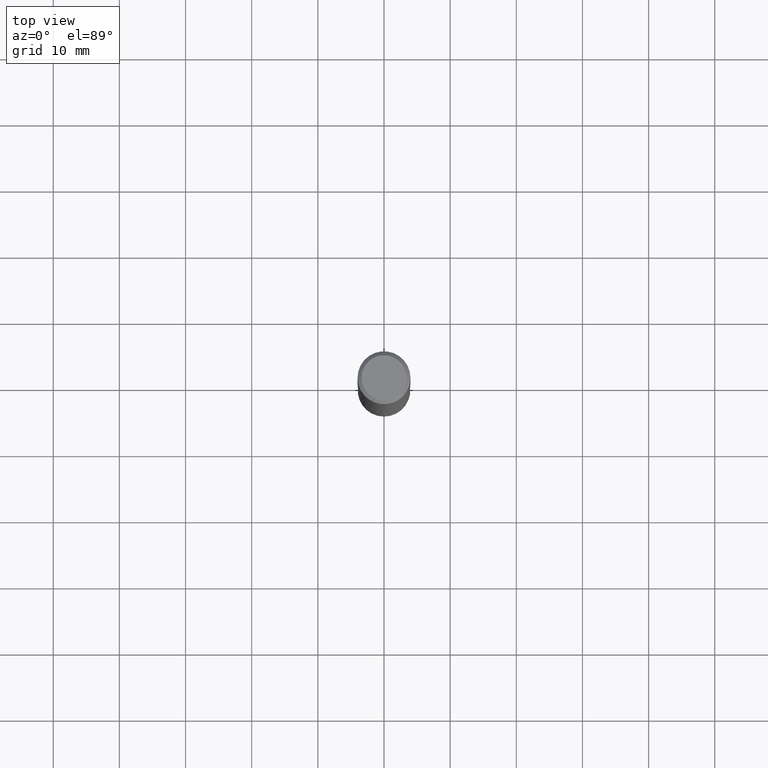
[diagram: clean part render]
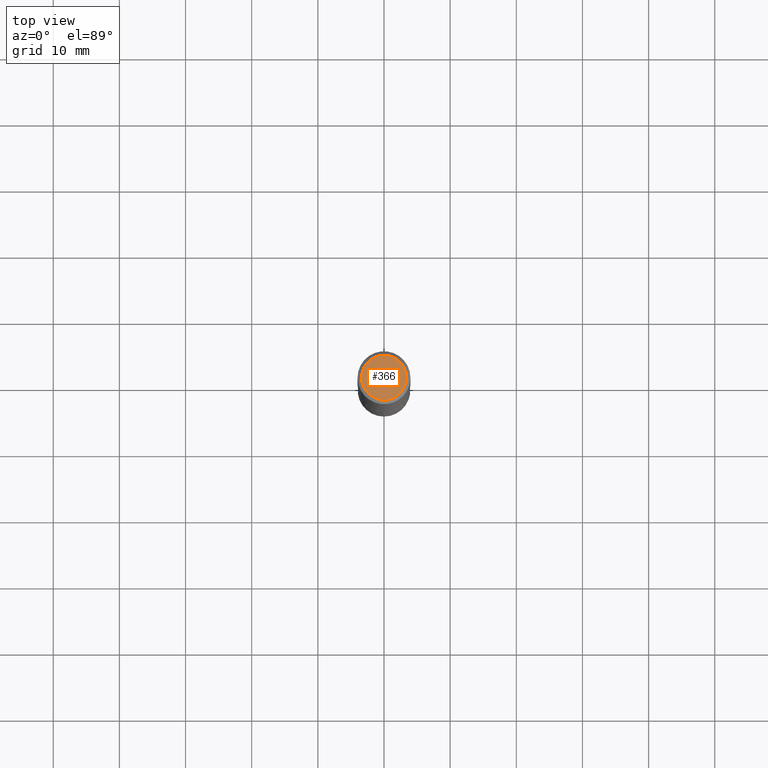
[diagram: same view with one face highlighted and labeled with its STEP entity id]
A machine part, top view. The second image highlights one B-rep face of the part: STEP entity #366.
In plain terms, the highlighted planar face has unit normal (0, -0, -1).
Its self-contained STEP definition (entity closure, byte-faithful):
#9 = VERTEX_POINT ( 'NONE', #51 ) ;
#13 = DIRECTION ( 'NONE',  ( -2.445468806185136597E-29, 3.491481338843145583E-15, 1.000000000000000000 ) ) ;
#14 = DIRECTION ( 'NONE',  ( 1.000000000000000000, -6.982962677686266711E-15, 4.876170806578254279E-29 ) ) ;
#21 = CARTESIAN_POINT ( 'NONE',  ( -1.002970424325032604E-46, 1.431975951230895391E-32, 4.101342130344482109E-18 ) ) ;
#32 = PLANE ( 'NONE',  #391 ) ;
#51 = CARTESIAN_POINT ( 'NONE',  ( 0.1338749999999999940, -1.040731925365424925E-15, 4.101342130351390035E-18 ) ) ;
#54 = EDGE_CURVE ( 'NONE', #9, #217, #344, .T. ) ;
#75 = AXIS2_PLACEMENT_3D ( 'NONE', #411, #13, #14 ) ;
#122 = ORIENTED_EDGE ( 'NONE', *, *, #54, .T. ) ;
#178 = FACE_OUTER_BOUND ( 'NONE', #261, .T. ) ;
#209 = AXIS2_PLACEMENT_3D ( 'NONE', #21, #449, #347 ) ;
#217 = VERTEX_POINT ( 'NONE', #453 ) ;
#260 = EDGE_CURVE ( 'NONE', #217, #9, #266, .T. ) ;
#261 = EDGE_LOOP ( 'NONE', ( #288, #122 ) ) ;
#266 = CIRCLE ( 'NONE', #209, 0.1338749999999999940 ) ;
#288 = ORIENTED_EDGE ( 'NONE', *, *, #260, .T. ) ;
#324 = DIRECTION ( 'NONE',  ( -1.000000000000000000, 6.982962677686265922E-15, -4.876176775795935793E-29 ) ) ;
#344 = CIRCLE ( 'NONE', #75, 0.1338749999999999940 ) ;
#347 = DIRECTION ( 'NONE',  ( 1.000000000000000000, -6.982962677686266711E-15, 4.876170806578254279E-29 ) ) ;
#366 = ADVANCED_FACE ( 'NONE', ( #178 ), #32, .F. ) ;
#367 = CARTESIAN_POINT ( 'NONE',  ( -5.014852121625163022E-47, 7.159879756154476955E-33, 2.050671065172241055E-18 ) ) ;
#391 = AXIS2_PLACEMENT_3D ( 'NONE', #367, #402, #324 ) ;
#402 = DIRECTION ( 'NONE',  ( 2.438088387897960049E-29, -3.491481338843145188E-15, -1.000000000000000000 ) ) ;
#411 = CARTESIAN_POINT ( 'NONE',  ( -1.002970424325032604E-46, 1.431975951230895391E-32, 4.101342130344482109E-18 ) ) ;
#449 = DIRECTION ( 'NONE',  ( -2.445468806185136597E-29, 3.491481338843145583E-15, 1.000000000000000000 ) ) ;
#453 = CARTESIAN_POINT ( 'NONE',  ( -0.1338749999999999940, 9.760872517903331886E-16, 4.101342130337800673E-18 ) ) ;